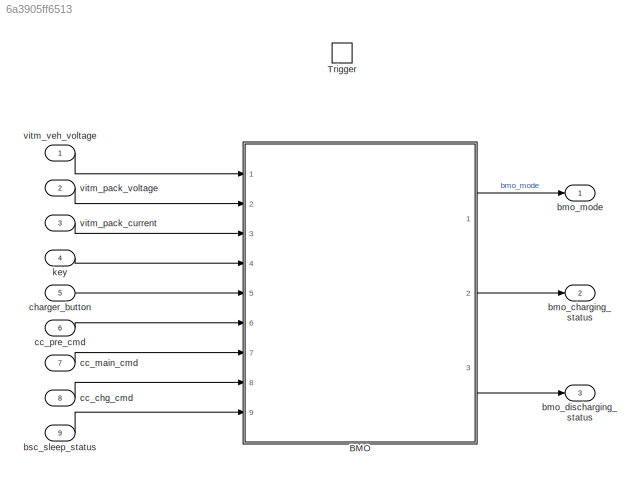
MODEL slx_6a3905ff6513
KIND model
CONFIG AbsTol = auto
CONFIG FixedStep = BMOk_stepSize
CONFIG MaxStep = auto
CONFIG MinStep = auto
CONFIG RelTol = 1e-3
CONFIG SampleTimeConstraint = Unconstrained
CONFIG Solver = FixedStepAuto
CONFIG SolverMode = Auto
CONFIG SolverName = FixedStepAuto
CONFIG StartTime = 0.0
CONFIG StopTime = 10.0
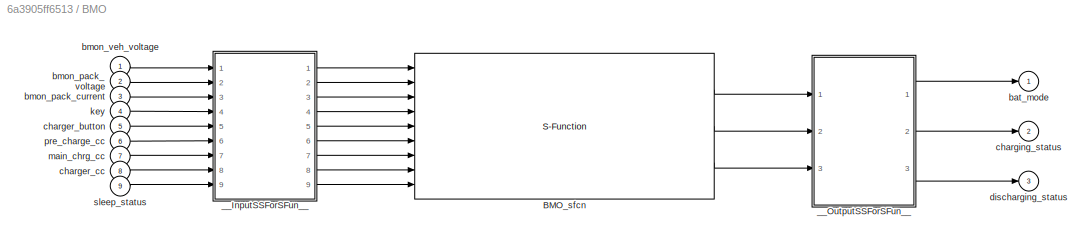
BLOCK [SubSystem] BMO
  Ports = [9, 3]
  RequestExecContextInheritance = off
  Variant = off
BLOCK [S-Function] BMO/BMO_sfcn
  CopyFcn = if ~strcmp(get_param(gcb,'Linkstatus'),'none') && ...\n~strcmp(get_param(gcb,'Linkstatus'),'implicit')      \n  set_param(gcb,'LinkStatus','none');                \nend
  EnableBusSupport = off
  FunctionName = BMO_sf
  Parameters = sfcnParam1
  Ports = [9, 3]
  SFunctionDeploymentMode = off
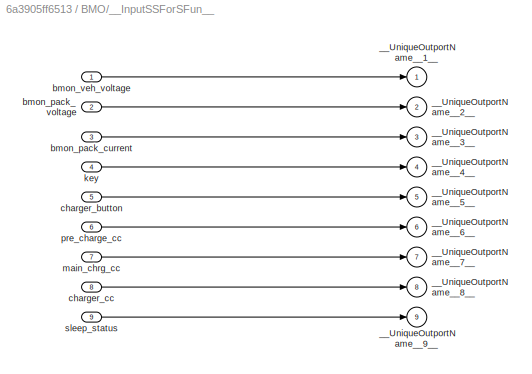
BLOCK [SubSystem] BMO/__InputSSForSFun__
  PermitHierarchicalResolution = ExplicitOnly
  Ports = [9, 9]
  RequestExecContextInheritance = off
  Variant = off
BLOCK [Outport] BMO/__InputSSForSFun__/__UniqueOutportName__1__
  IconDisplay = Port number
BLOCK [Outport] BMO/__InputSSForSFun__/__UniqueOutportName__2__
  IconDisplay = Port number
  Port = 2
BLOCK [Outport] BMO/__InputSSForSFun__/__UniqueOutportName__3__
  IconDisplay = Port number
  Port = 3
BLOCK [Outport] BMO/__InputSSForSFun__/__UniqueOutportName__4__
  IconDisplay = Port number
  Port = 4
BLOCK [Outport] BMO/__InputSSForSFun__/__UniqueOutportName__5__
  IconDisplay = Port number
  Port = 5
BLOCK [Outport] BMO/__InputSSForSFun__/__UniqueOutportName__6__
  IconDisplay = Port number
  Port = 6
BLOCK [Outport] BMO/__InputSSForSFun__/__UniqueOutportName__7__
  IconDisplay = Port number
  Port = 7
BLOCK [Outport] BMO/__InputSSForSFun__/__UniqueOutportName__8__
  IconDisplay = Port number
  Port = 8
BLOCK [Outport] BMO/__InputSSForSFun__/__UniqueOutportName__9__
  IconDisplay = Port number
  Port = 9
BLOCK [Inport] BMO/__InputSSForSFun__/bmon_pack_current
  IconDisplay = Port number
  Port = 3
BLOCK [Inport] BMO/__InputSSForSFun__/bmon_pack_voltage
  IconDisplay = Port number
  Port = 2
BLOCK [Inport] BMO/__InputSSForSFun__/bmon_veh_voltage
  IconDisplay = Port number
BLOCK [Inport] BMO/__InputSSForSFun__/charger_button
  IconDisplay = Port number
  Port = 5
BLOCK [Inport] BMO/__InputSSForSFun__/charger_cc
  IconDisplay = Port number
  Port = 8
BLOCK [Inport] BMO/__InputSSForSFun__/key
  IconDisplay = Port number
  Port = 4
BLOCK [Inport] BMO/__InputSSForSFun__/main_chrg_cc
  IconDisplay = Port number
  Port = 7
BLOCK [Inport] BMO/__InputSSForSFun__/pre_charge_cc
  IconDisplay = Port number
  Port = 6
BLOCK [Inport] BMO/__InputSSForSFun__/sleep_status
  IconDisplay = Port number
  Port = 9
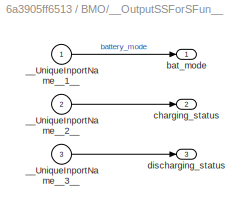
BLOCK [SubSystem] BMO/__OutputSSForSFun__
  PermitHierarchicalResolution = ExplicitOnly
  Ports = [3, 3]
  RequestExecContextInheritance = off
  Variant = off
BLOCK [Inport] BMO/__OutputSSForSFun__/__UniqueInportName__1__
  IconDisplay = Port number
BLOCK [Inport] BMO/__OutputSSForSFun__/__UniqueInportName__2__
  IconDisplay = Port number
  Port = 2
BLOCK [Inport] BMO/__OutputSSForSFun__/__UniqueInportName__3__
  IconDisplay = Port number
  Port = 3
BLOCK [Outport] BMO/__OutputSSForSFun__/bat_mode
  IconDisplay = Port number
BLOCK [Outport] BMO/__OutputSSForSFun__/charging_status
  IconDisplay = Port number
  Port = 2
BLOCK [Outport] BMO/__OutputSSForSFun__/discharging_status
  IconDisplay = Port number
  Port = 3
BLOCK [Outport] BMO/bat_mode
  IconDisplay = Port number
BLOCK [Inport] BMO/bmon_pack_current
  IconDisplay = Port number
  Port = 3
BLOCK [Inport] BMO/bmon_pack_voltage
  IconDisplay = Port number
  Port = 2
BLOCK [Inport] BMO/bmon_veh_voltage
  IconDisplay = Port number
BLOCK [Inport] BMO/charger_button
  IconDisplay = Port number
  Port = 5
BLOCK [Inport] BMO/charger_cc
  IconDisplay = Port number
  Port = 8
BLOCK [Outport] BMO/charging_status
  IconDisplay = Port number
  Port = 2
BLOCK [Outport] BMO/discharging_status
  IconDisplay = Port number
  Port = 3
BLOCK [Inport] BMO/key
  IconDisplay = Port number
  Port = 4
BLOCK [Inport] BMO/main_chrg_cc
  IconDisplay = Port number
  Port = 7
BLOCK [Inport] BMO/pre_charge_cc
  IconDisplay = Port number
  Port = 6
BLOCK [Inport] BMO/sleep_status
  IconDisplay = Port number
  Port = 9
BLOCK [TriggerPort] Trigger
  PortDimensions = 1
  Ports = []
  StatesWhenEnabling = held
  TriggerType = function-call
BLOCK [Outport] bmo_charging_status
  IconDisplay = Port number
  Port = 2
BLOCK [Outport] bmo_discharging_status
  IconDisplay = Port number
  Port = 3
BLOCK [Outport] bmo_mode
  IconDisplay = Port number
BLOCK [Inport] bsc_sleep_status
  IconDisplay = Port number
  OutDataTypeStr = boolean
  Port = 9
BLOCK [Inport] cc_chg_cmd
  IconDisplay = Port number
  OutDataTypeStr = boolean
  Port = 8
BLOCK [Inport] cc_main_cmd
  IconDisplay = Port number
  Port = 7
BLOCK [Inport] cc_pre_cmd
  IconDisplay = Port number
  Port = 6
BLOCK [Inport] charger_button
  IconDisplay = Port number
  OutDataTypeStr = uint8
  Port = 5
BLOCK [Inport] key
  IconDisplay = Port number
  OutDataTypeStr = uint8
  Port = 4
BLOCK [Inport] vitm_pack_current
  IconDisplay = Port number
  Port = 3
BLOCK [Inport] vitm_pack_voltage
  IconDisplay = Port number
  Port = 2
BLOCK [Inport] vitm_veh_voltage
  IconDisplay = Port number
LINE BMO/BMO_sfcn:1 -> BMO/__OutputSSForSFun__:1
LINE BMO/BMO_sfcn:2 -> BMO/__OutputSSForSFun__:2
LINE BMO/BMO_sfcn:3 -> BMO/__OutputSSForSFun__:3
LINE BMO/__InputSSForSFun__/bmon_pack_current:1 -> BMO/__InputSSForSFun__/__UniqueOutportName__3__:1
LINE BMO/__InputSSForSFun__/bmon_pack_voltage:1 -> BMO/__InputSSForSFun__/__UniqueOutportName__2__:1
LINE BMO/__InputSSForSFun__/bmon_veh_voltage:1 -> BMO/__InputSSForSFun__/__UniqueOutportName__1__:1
LINE BMO/__InputSSForSFun__/charger_button:1 -> BMO/__InputSSForSFun__/__UniqueOutportName__5__:1
LINE BMO/__InputSSForSFun__/charger_cc:1 -> BMO/__InputSSForSFun__/__UniqueOutportName__8__:1
LINE BMO/__InputSSForSFun__/key:1 -> BMO/__InputSSForSFun__/__UniqueOutportName__4__:1
LINE BMO/__InputSSForSFun__/main_chrg_cc:1 -> BMO/__InputSSForSFun__/__UniqueOutportName__7__:1
LINE BMO/__InputSSForSFun__/pre_charge_cc:1 -> BMO/__InputSSForSFun__/__UniqueOutportName__6__:1
LINE BMO/__InputSSForSFun__/sleep_status:1 -> BMO/__InputSSForSFun__/__UniqueOutportName__9__:1
LINE BMO/__InputSSForSFun__:1 -> BMO/BMO_sfcn:1
LINE BMO/__InputSSForSFun__:2 -> BMO/BMO_sfcn:2
LINE BMO/__InputSSForSFun__:3 -> BMO/BMO_sfcn:3
LINE BMO/__InputSSForSFun__:4 -> BMO/BMO_sfcn:4
LINE BMO/__InputSSForSFun__:5 -> BMO/BMO_sfcn:5
LINE BMO/__InputSSForSFun__:6 -> BMO/BMO_sfcn:6
LINE BMO/__InputSSForSFun__:7 -> BMO/BMO_sfcn:7
LINE BMO/__InputSSForSFun__:8 -> BMO/BMO_sfcn:8
LINE BMO/__InputSSForSFun__:9 -> BMO/BMO_sfcn:9
LINE BMO/__OutputSSForSFun__/__UniqueInportName__1__:1 -> BMO/__OutputSSForSFun__/bat_mode:1
LINE BMO/__OutputSSForSFun__/__UniqueInportName__2__:1 -> BMO/__OutputSSForSFun__/charging_status:1
LINE BMO/__OutputSSForSFun__/__UniqueInportName__3__:1 -> BMO/__OutputSSForSFun__/discharging_status:1
LINE BMO/__OutputSSForSFun__:1 -> BMO/bat_mode:1
LINE BMO/__OutputSSForSFun__:2 -> BMO/charging_status:1
LINE BMO/__OutputSSForSFun__:3 -> BMO/discharging_status:1
LINE BMO/bmon_pack_current:1 -> BMO/__InputSSForSFun__:3
LINE BMO/bmon_pack_voltage:1 -> BMO/__InputSSForSFun__:2
LINE BMO/bmon_veh_voltage:1 -> BMO/__InputSSForSFun__:1
LINE BMO/charger_button:1 -> BMO/__InputSSForSFun__:5
LINE BMO/charger_cc:1 -> BMO/__InputSSForSFun__:8
LINE BMO/key:1 -> BMO/__InputSSForSFun__:4
LINE BMO/main_chrg_cc:1 -> BMO/__InputSSForSFun__:7
LINE BMO/pre_charge_cc:1 -> BMO/__InputSSForSFun__:6
LINE BMO/sleep_status:1 -> BMO/__InputSSForSFun__:9
LINE BMO:1 -> bmo_mode:1
LINE BMO:2 -> bmo_charging_status:1
LINE BMO:3 -> bmo_discharging_status:1
LINE bsc_sleep_status:1 -> BMO:9
LINE cc_chg_cmd:1 -> BMO:8
LINE cc_main_cmd:1 -> BMO:7
LINE cc_pre_cmd:1 -> BMO:6
LINE charger_button:1 -> BMO:5
LINE key:1 -> BMO:4
LINE vitm_pack_current:1 -> BMO:3
LINE vitm_pack_voltage:1 -> BMO:2
LINE vitm_veh_voltage:1 -> BMO:1
